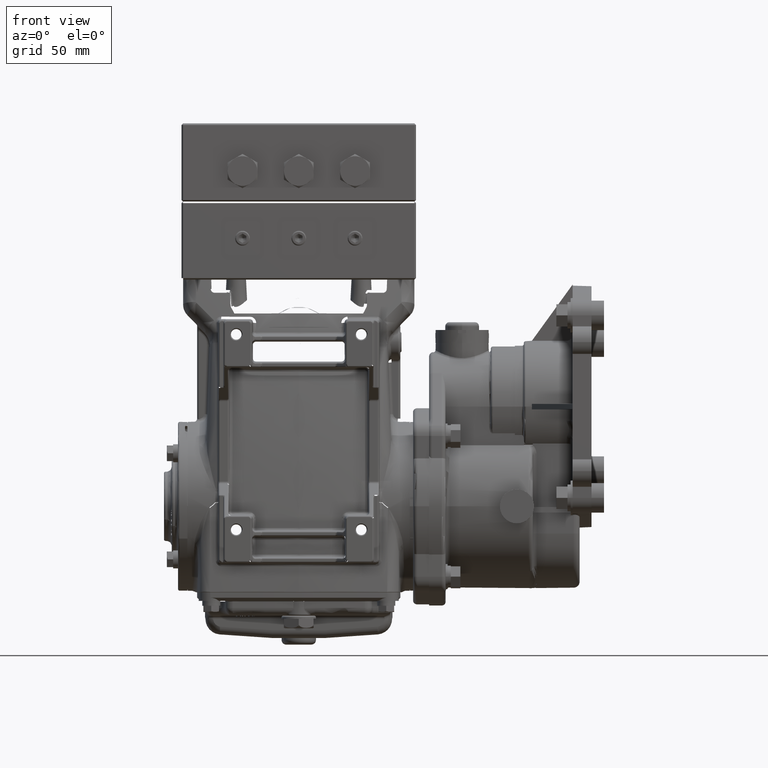
[diagram: clean part render]
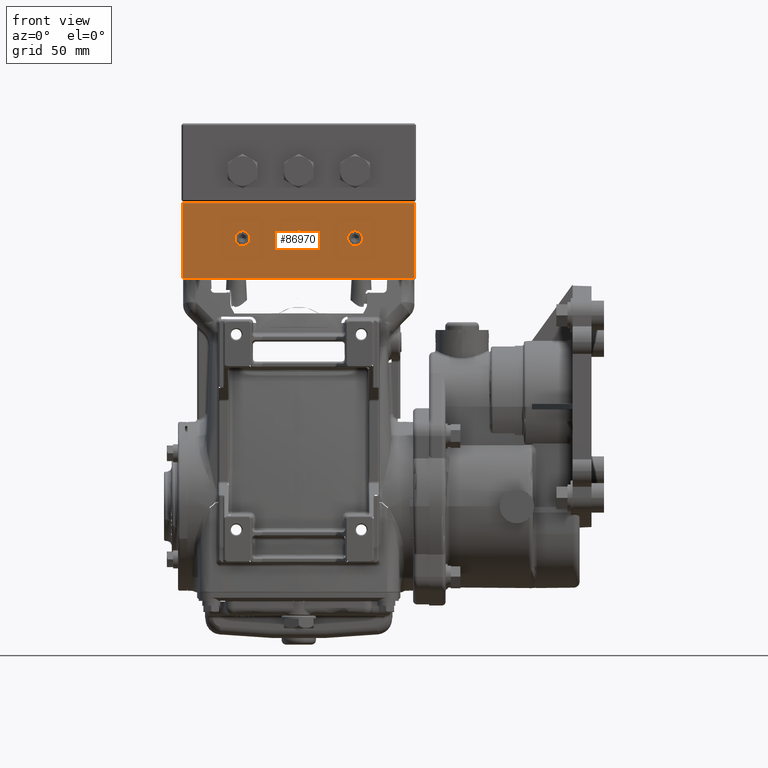
[diagram: same view with one face highlighted and labeled with its STEP entity id]
A machine part, front view. The second image highlights one B-rep face of the part: STEP entity #86970.
In plain terms, the highlighted planar face has unit normal (0, -1, 0).
Its self-contained STEP definition (entity closure, byte-faithful):
#674 = AXIS2_PLACEMENT_3D ( 'NONE', #61495, #53736, #27133 ) ;
#796 = EDGE_LOOP ( 'NONE', ( #1603, #78010 ) ) ;
#1002 = CARTESIAN_POINT ( 'NONE',  ( 2.913385826771653697, -2.893700787401574104, 7.637795275590550936 ) ) ;
#1603 = ORIENTED_EDGE ( 'NONE', *, *, #38915, .T. ) ;
#1662 = DIRECTION ( 'NONE',  ( 0.000000000000000000, 0.000000000000000000, -1.000000000000000000 ) ) ;
#2427 = VERTEX_POINT ( 'NONE', #70908 ) ;
#3040 = EDGE_LOOP ( 'NONE', ( #41542, #19462, #60885, #73386 ) ) ;
#4275 = CARTESIAN_POINT ( 'NONE',  ( 1.417322834645669216, -2.893700787401574104, 6.751968503937007426 ) ) ;
#4656 = DIRECTION ( 'NONE',  ( 0.000000000000000000, -1.000000000000000000, 0.000000000000000000 ) ) ;
#4716 = DIRECTION ( 'NONE',  ( 0.000000000000000000, 0.000000000000000000, -1.000000000000000000 ) ) ;
#7446 = AXIS2_PLACEMENT_3D ( 'NONE', #8524, #36416, #1662 ) ;
#8524 = CARTESIAN_POINT ( 'NONE',  ( 0.000000000000000000, -2.893700787401574104, 6.751968503937007426 ) ) ;
#8665 = VERTEX_POINT ( 'NONE', #17710 ) ;
#8737 = EDGE_CURVE ( 'NONE', #13831, #24478, #55354, .T. ) ;
#9819 = CARTESIAN_POINT ( 'NONE',  ( -1.417322834645669438, -2.893700787401574104, 6.936338582677164410 ) ) ;
#10173 = FACE_BOUND ( 'NONE', #796, .T. ) ;
#11151 = VERTEX_POINT ( 'NONE', #15347 ) ;
#11211 = VECTOR ( 'NONE', #55348, 39.37007874015748143 ) ;
#12579 = AXIS2_PLACEMENT_3D ( 'NONE', #56285, #26303, #67966 ) ;
#13002 = AXIS2_PLACEMENT_3D ( 'NONE', #56574, #29087, #14465 ) ;
#13831 = VERTEX_POINT ( 'NONE', #9819 ) ;
#14384 = CARTESIAN_POINT ( 'NONE',  ( -2.913385826771653697, -2.893700787401574104, 5.708661417322833387 ) ) ;
#14465 = DIRECTION ( 'NONE',  ( 0.000000000000000000, 0.000000000000000000, -1.000000000000000000 ) ) ;
#15235 = CIRCLE ( 'NONE', #674, 0.1843700787401572061 ) ;
#15347 = CARTESIAN_POINT ( 'NONE',  ( 2.257882267876788446E-17, -2.893700787401574104, 6.936338582677164410 ) ) ;
#17325 = CARTESIAN_POINT ( 'NONE',  ( -2.952755905511811108, -2.893700787401574104, 5.748031496062990797 ) ) ;
#17710 = CARTESIAN_POINT ( 'NONE',  ( 0.000000000000000000, -2.893700787401574104, 6.567598425196850442 ) ) ;
#18667 = LINE ( 'NONE', #88214, #44980 ) ;
#18762 = AXIS2_PLACEMENT_3D ( 'NONE', #38069, #4656, #73303 ) ;
#19462 = ORIENTED_EDGE ( 'NONE', *, *, #57266, .T. ) ;
#20247 = ORIENTED_EDGE ( 'NONE', *, *, #49053, .T. ) ;
#22859 = AXIS2_PLACEMENT_3D ( 'NONE', #54947, #41208, #34342 ) ;
#24478 = VERTEX_POINT ( 'NONE', #54015 ) ;
#24732 = VERTEX_POINT ( 'NONE', #57188 ) ;
#26303 = DIRECTION ( 'NONE',  ( -0.000000000000000000, 1.000000000000000000, -0.000000000000000000 ) ) ;
#27133 = DIRECTION ( 'NONE',  ( 0.000000000000000000, 0.000000000000000000, -1.000000000000000000 ) ) ;
#28435 = VERTEX_POINT ( 'NONE', #1002 ) ;
#29087 = DIRECTION ( 'NONE',  ( -0.000000000000000000, 1.000000000000000000, -0.000000000000000000 ) ) ;
#31587 = EDGE_CURVE ( 'NONE', #8665, #11151, #65816, .T. ) ;
#33394 = CARTESIAN_POINT ( 'NONE',  ( -2.952755905511811108, -2.893700787401574104, 7.637795275590550936 ) ) ;
#34342 = DIRECTION ( 'NONE',  ( 0.000000000000000000, 0.000000000000000000, -1.000000000000000000 ) ) ;
#36416 = DIRECTION ( 'NONE',  ( -0.000000000000000000, 1.000000000000000000, -0.000000000000000000 ) ) ;
#38069 = CARTESIAN_POINT ( 'NONE',  ( -2.952755905511811108, -2.893700787401574104, 7.677165354330708347 ) ) ;
#38915 = EDGE_CURVE ( 'NONE', #78321, #89025, #15235, .T. ) ;
#39421 = FACE_BOUND ( 'NONE', #45222, .T. ) ;
#41208 = DIRECTION ( 'NONE',  ( -0.000000000000000000, 1.000000000000000000, -0.000000000000000000 ) ) ;
#41542 = ORIENTED_EDGE ( 'NONE', *, *, #75621, .T. ) ;
#44637 = CIRCLE ( 'NONE', #87006, 0.1843700787401572061 ) ;
#44980 = VECTOR ( 'NONE', #80894, 39.37007874015748143 ) ;
#45222 = EDGE_LOOP ( 'NONE', ( #20247, #60545 ) ) ;
#47284 = EDGE_LOOP ( 'NONE', ( #83808, #70951 ) ) ;
#47321 = EDGE_CURVE ( 'NONE', #89025, #78321, #44637, .T. ) ;
#48284 = EDGE_CURVE ( 'NONE', #11151, #8665, #62250, .T. ) ;
#49053 = EDGE_CURVE ( 'NONE', #24478, #13831, #85510, .T. ) ;
#52270 = FACE_BOUND ( 'NONE', #47284, .T. ) ;
#53736 = DIRECTION ( 'NONE',  ( -0.000000000000000000, 1.000000000000000000, -0.000000000000000000 ) ) ;
#54015 = CARTESIAN_POINT ( 'NONE',  ( -1.417322834645669438, -2.893700787401574104, 6.567598425196850442 ) ) ;
#54947 = CARTESIAN_POINT ( 'NONE',  ( -1.417322834645669438, -2.893700787401574104, 6.751968503937007426 ) ) ;
#55348 = DIRECTION ( 'NONE',  ( -1.000000000000000000, 0.000000000000000000, 0.000000000000000000 ) ) ;
#55354 = CIRCLE ( 'NONE', #13002, 0.1843700787401572061 ) ;
#56285 = CARTESIAN_POINT ( 'NONE',  ( 0.000000000000000000, -2.893700787401574104, 6.751968503937007426 ) ) ;
#56574 = CARTESIAN_POINT ( 'NONE',  ( -1.417322834645669438, -2.893700787401574104, 6.751968503937007426 ) ) ;
#57188 = CARTESIAN_POINT ( 'NONE',  ( -2.913385826771653697, -2.893700787401574104, 5.748031496062990797 ) ) ;
#57266 = EDGE_CURVE ( 'NONE', #24732, #2427, #66746, .T. ) ;
#60545 = ORIENTED_EDGE ( 'NONE', *, *, #8737, .T. ) ;
#60885 = ORIENTED_EDGE ( 'NONE', *, *, #69060, .T. ) ;
#61495 = CARTESIAN_POINT ( 'NONE',  ( 1.417322834645669216, -2.893700787401574104, 6.751968503937007426 ) ) ;
#62250 = CIRCLE ( 'NONE', #12579, 0.1843700787401572061 ) ;
#65816 = CIRCLE ( 'NONE', #7446, 0.1843700787401572061 ) ;
#66746 = LINE ( 'NONE', #17325, #77399 ) ;
#66950 = DIRECTION ( 'NONE',  ( -0.000000000000000000, 1.000000000000000000, -0.000000000000000000 ) ) ;
#67336 = PLANE ( 'NONE',  #18762 ) ;
#67966 = DIRECTION ( 'NONE',  ( 0.000000000000000000, 0.000000000000000000, -1.000000000000000000 ) ) ;
#68816 = CARTESIAN_POINT ( 'NONE',  ( -2.913385826771653697, -2.893700787401574104, 7.637795275590550936 ) ) ;
#69060 = EDGE_CURVE ( 'NONE', #2427, #28435, #18667, .T. ) ;
#70908 = CARTESIAN_POINT ( 'NONE',  ( 2.913385826771653697, -2.893700787401574104, 5.748031496062990797 ) ) ;
#70951 = ORIENTED_EDGE ( 'NONE', *, *, #48284, .T. ) ;
#73303 = DIRECTION ( 'NONE',  ( 0.000000000000000000, -0.000000000000000000, -1.000000000000000000 ) ) ;
#73386 = ORIENTED_EDGE ( 'NONE', *, *, #84345, .T. ) ;
#75621 = EDGE_CURVE ( 'NONE', #82621, #24732, #77084, .T. ) ;
#77084 = LINE ( 'NONE', #14384, #80694 ) ;
#77399 = VECTOR ( 'NONE', #79118, 39.37007874015748143 ) ;
#78010 = ORIENTED_EDGE ( 'NONE', *, *, #47321, .T. ) ;
#78321 = VERTEX_POINT ( 'NONE', #79972 ) ;
#79118 = DIRECTION ( 'NONE',  ( 1.000000000000000000, 0.000000000000000000, 0.000000000000000000 ) ) ;
#79972 = CARTESIAN_POINT ( 'NONE',  ( 1.417322834645669216, -2.893700787401574104, 6.567598425196850442 ) ) ;
#80694 = VECTOR ( 'NONE', #82567, 39.37007874015748143 ) ;
#80894 = DIRECTION ( 'NONE',  ( 0.000000000000000000, 0.000000000000000000, 1.000000000000000000 ) ) ;
#81041 = FACE_OUTER_BOUND ( 'NONE', #3040, .T. ) ;
#82567 = DIRECTION ( 'NONE',  ( 0.000000000000000000, 0.000000000000000000, -1.000000000000000000 ) ) ;
#82621 = VERTEX_POINT ( 'NONE', #68816 ) ;
#83808 = ORIENTED_EDGE ( 'NONE', *, *, #31587, .T. ) ;
#84345 = EDGE_CURVE ( 'NONE', #28435, #82621, #88758, .T. ) ;
#85510 = CIRCLE ( 'NONE', #22859, 0.1843700787401572061 ) ;
#85837 = CARTESIAN_POINT ( 'NONE',  ( 1.417322834645669216, -2.893700787401574104, 6.936338582677164410 ) ) ;
#86970 = ADVANCED_FACE ( 'NONE', ( #81041, #39421, #52270, #10173 ), #67336, .T. ) ;
#87006 = AXIS2_PLACEMENT_3D ( 'NONE', #4275, #66950, #4716 ) ;
#88214 = CARTESIAN_POINT ( 'NONE',  ( 2.913385826771653697, -2.893700787401574104, 7.677165354330708347 ) ) ;
#88758 = LINE ( 'NONE', #33394, #11211 ) ;
#89025 = VERTEX_POINT ( 'NONE', #85837 ) ;